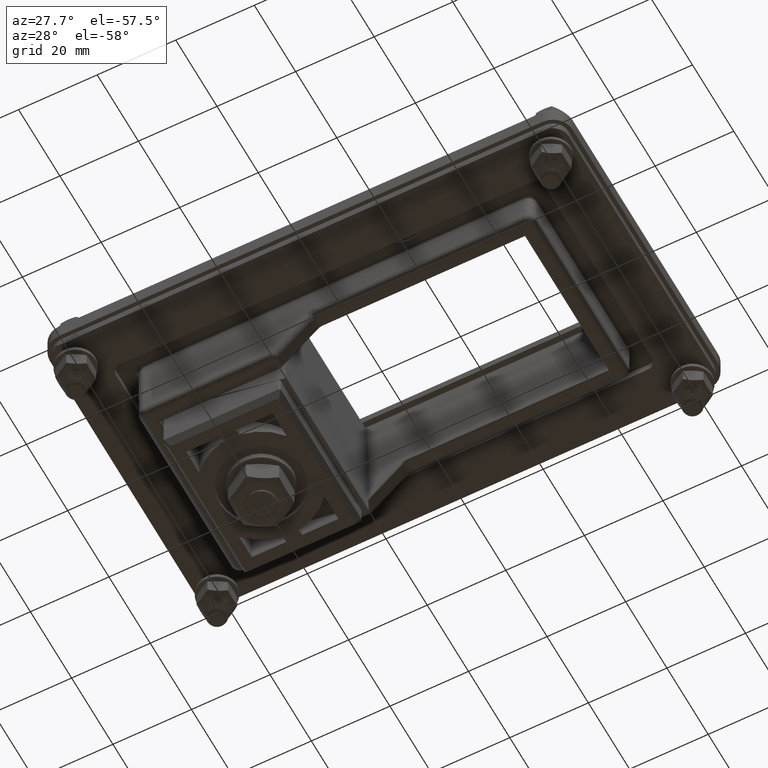
[diagram: clean part render]
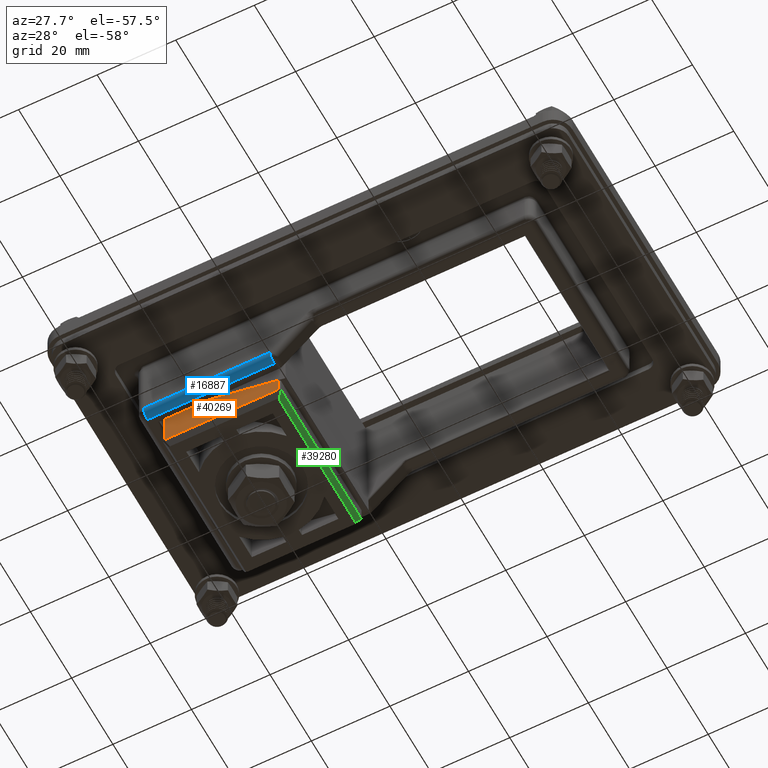
[diagram: same view with three faces highlighted in distinct colors, each labeled with its STEP entity id]
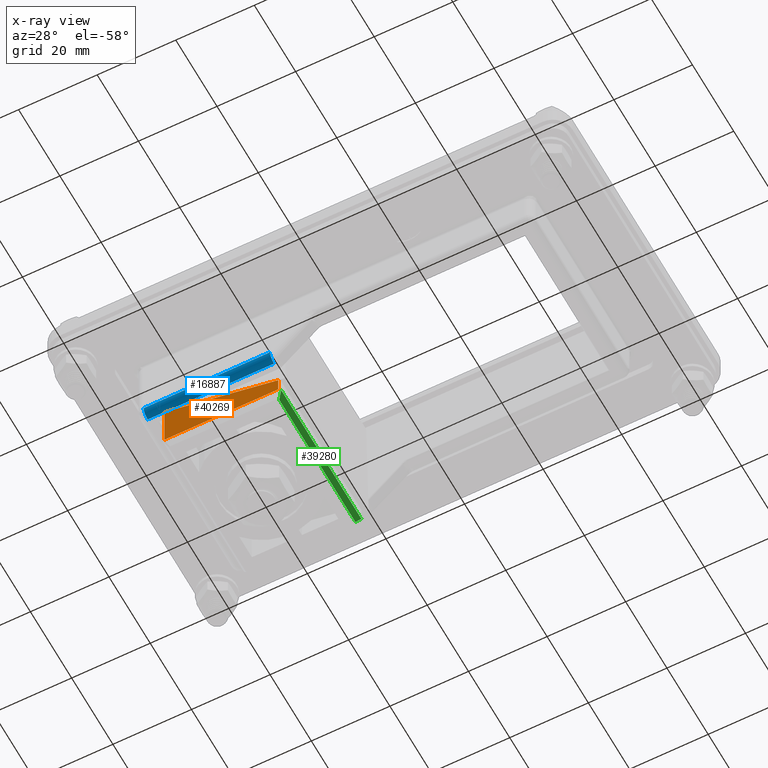
[diagram: x-ray of the same camera — body ghosted, the three highlighted faces saturated]
A machine part, auxiliary view with three faces highlighted in distinct colors.
The next image is the same camera in x-ray (body ghosted, the three faces saturated) — at least one of them is partly hidden behind the body in this view.
Their STEP definitions:

[orange] entity #40269 — the highlighted planar face has unit normal (-0, -1, 0).
#39154=CARTESIAN_POINT('',(570.45626329083211,423.0838394565817,11.75));
#39155=VERTEX_POINT('',#39154);
#39163=CARTESIAN_POINT('',(570.45626329083211,423.0838394565817,0.133974596215594));
#39164=VERTEX_POINT('',#39163);
#39165=CARTESIAN_POINT('',(570.45626329083211,423.0838394565817,11.75));
#39166=DIRECTION('',(0.0,0.0,-1.0));
#39167=VECTOR('',#39166,11.616025403784407);
#39168=LINE('',#39165,#39167);
#39169=EDGE_CURVE('',#39155,#39164,#39168,.T.);
#39506=CARTESIAN_POINT('',(541.45626329083245,423.0838394565817,7.904501176718119));
#39507=VERTEX_POINT('',#39506);
#39508=CARTESIAN_POINT('',(541.45626329083245,423.0838394565817,7.904501176718119));
#39509=DIRECTION('',(0.965925826289068,0.0,-0.258819045102521));
#39510=VECTOR('',#39509,30.023009231892061);
#39511=LINE('',#39508,#39510);
#39512=EDGE_CURVE('',#39507,#39164,#39511,.T.);
#39599=CARTESIAN_POINT('',(541.45626329083245,423.0838394565817,11.75));
#39600=VERTEX_POINT('',#39599);
#39601=CARTESIAN_POINT('',(541.45626329083245,423.0838394565817,7.904501176718119));
#39602=DIRECTION('',(0.0,0.0,1.0));
#39603=VECTOR('',#39602,3.845498823281881);
#39604=LINE('',#39601,#39603);
#39605=EDGE_CURVE('',#39507,#39600,#39604,.T.);
#39643=CARTESIAN_POINT('',(541.45626329083245,423.0838394565817,11.75));
#39644=DIRECTION('',(1.0,0.0,0.0));
#39645=VECTOR('',#39644,28.999999999999659);
#39646=LINE('',#39643,#39645);
#39647=EDGE_CURVE('',#39600,#39155,#39646,.T.);
#40258=CARTESIAN_POINT('',(570.95626329083245,423.0838394565817,0.0));
#40259=DIRECTION('',(0.0,-1.0,0.0));
#40260=DIRECTION('',(0.0,0.0,-1.0));
#40261=AXIS2_PLACEMENT_3D('',#40258,#40259,#40260);
#40262=PLANE('',#40261);
#40263=ORIENTED_EDGE('',*,*,#39169,.F.);
#40264=ORIENTED_EDGE('',*,*,#39647,.F.);
#40265=ORIENTED_EDGE('',*,*,#39605,.F.);
#40266=ORIENTED_EDGE('',*,*,#39512,.T.);
#40267=EDGE_LOOP('',(#40263,#40264,#40265,#40266));
#40268=FACE_OUTER_BOUND('',#40267,.T.);
#40269=ADVANCED_FACE('',(#40268),#40262,.T.);

[blue] entity #16887 — the highlighted cylindrical surface (edge-blend (fillet) strip) has radius 2 mm, axis along (1, 0, 0).
#1134=CARTESIAN_POINT('',(-26.328427124746206,-22.180108900902429,-10.0));
#1135=VERTEX_POINT('',#1134);
#16286=CARTESIAN_POINT('',(-58.5,-22.180108900902429,-10.0));
#16287=VERTEX_POINT('',#16286);
#16288=CARTESIAN_POINT('',(-58.5,-22.180108900902429,-10.0));
#16289=DIRECTION('',(1.0,0.0,0.0));
#16290=VECTOR('',#16289,32.171572875253794);
#16291=LINE('',#16288,#16290);
#16292=EDGE_CURVE('',#16287,#1135,#16291,.T.);
#16827=CARTESIAN_POINT('',(-26.328427124746206,-24.180032747030772,-8.017453070996744));
#16828=VERTEX_POINT('',#16827);
#16836=CARTESIAN_POINT('',(-26.328427124746206,-22.180108900902429,-8.0));
#16837=DIRECTION('',(1.0,0.0,0.0));
#16838=DIRECTION('',(0.0,-0.704014724455968,-0.710185375623285));
#16839=AXIS2_PLACEMENT_3D('',#16836,#16837,#16838);
#16840=CIRCLE('',#16839,2.0);
#16841=EDGE_CURVE('',#16828,#1135,#16840,.T.);
#16863=CARTESIAN_POINT('',(-1.531598513011145,-22.180108900902429,-8.0));
#16864=DIRECTION('',(1.0,0.0,0.0));
#16865=DIRECTION('',(0.0,-0.704014724455968,-0.710185375623286));
#16866=AXIS2_PLACEMENT_3D('',#16863,#16864,#16865);
#16867=CYLINDRICAL_SURFACE('',#16866,2.0);
#16868=CARTESIAN_POINT('',(-58.5,-24.180032747030772,-8.01745307099675));
#16869=VERTEX_POINT('',#16868);
#16870=CARTESIAN_POINT('',(-58.5,-22.180108900902429,-8.0));
#16871=DIRECTION('',(1.0,0.0,0.0));
#16872=DIRECTION('',(0.0,-0.999961923064171,-0.008726535498375));
#16873=AXIS2_PLACEMENT_3D('',#16870,#16871,#16872);
#16874=CIRCLE('',#16873,2.000000000000001);
#16875=EDGE_CURVE('',#16869,#16287,#16874,.T.);
#16876=ORIENTED_EDGE('',*,*,#16875,.T.);
#16877=ORIENTED_EDGE('',*,*,#16292,.T.);
#16878=ORIENTED_EDGE('',*,*,#16841,.F.);
#16879=CARTESIAN_POINT('',(-26.328427124746206,-24.180032747030772,-8.017453070996748));
#16880=DIRECTION('',(-1.0,0.0,0.0));
#16881=VECTOR('',#16880,32.171572875253794);
#16882=LINE('',#16879,#16881);
#16883=EDGE_CURVE('',#16828,#16869,#16882,.T.);
#16884=ORIENTED_EDGE('',*,*,#16883,.T.);
#16885=EDGE_LOOP('',(#16876,#16877,#16878,#16884));
#16886=FACE_OUTER_BOUND('',#16885,.T.);
#16887=ADVANCED_FACE('',(#16886),#16867,.T.);

[green] entity #39280 — the highlighted planar face has unit normal (0.8944, -0, -0.4472).
#39205=CARTESIAN_POINT('',(541.95626329083245,424.53105305208169,13.75));
#39206=VERTEX_POINT('',#39205);
#39214=CARTESIAN_POINT('',(540.9587952143296,423.53358497557906,11.75506384699489));
#39215=VERTEX_POINT('',#39214);
#39216=CARTESIAN_POINT('',(541.95626329083245,424.53105305208169,13.75));
#39217=DIRECTION('',(-0.408248290463869,-0.408248290463869,-0.81649658092772));
#39218=VECTOR('',#39217,2.443287822146817);
#39219=LINE('',#39216,#39218);
#39220=EDGE_CURVE('',#39206,#39215,#39219,.T.);
#39232=CARTESIAN_POINT('',(541.45626329083245,442.98383945658173,12.750000000000002));
#39233=DIRECTION('',(-0.894427190999916,0.0,0.447213595499958));
#39234=DIRECTION('',(0.447213595499958,0.0,0.894427190999916));
#39235=AXIS2_PLACEMENT_3D('',#39232,#39233,#39234);
#39236=PLANE('',#39235);
#39237=ORIENTED_EDGE('',*,*,#39220,.F.);
#39238=CARTESIAN_POINT('',(541.95626329083245,461.43662586108184,13.75));
#39239=VERTEX_POINT('',#39238);
#39240=CARTESIAN_POINT('',(541.95626329083245,424.53105305208169,13.75));
#39241=DIRECTION('',(0.0,1.0,0.0));
#39242=VECTOR('',#39241,36.905572809000148);
#39243=LINE('',#39240,#39242);
#39244=EDGE_CURVE('',#39206,#39239,#39243,.T.);
#39245=ORIENTED_EDGE('',*,*,#39244,.T.);
#39246=CARTESIAN_POINT('',(540.95879521432971,462.43409393758463,11.755063846994895));
#39247=VERTEX_POINT('',#39246);
#39248=CARTESIAN_POINT('',(540.95879521432971,462.43409393758463,11.755063846994895));
#39249=DIRECTION('',(0.408248290463868,-0.408248290463868,0.816496580927721));
#39250=VECTOR('',#39249,2.443287822146824);
#39251=LINE('',#39248,#39250);
#39252=EDGE_CURVE('',#39247,#39239,#39251,.T.);
#39253=ORIENTED_EDGE('',*,*,#39252,.F.);
#39254=CARTESIAN_POINT('',(540.95626329083245,462.38383945658177,11.75));
#39255=VERTEX_POINT('',#39254);
#39256=CARTESIAN_POINT('',(541.45626329083245,462.38383945658177,12.750000000000002));
#39257=DIRECTION('',(0.894427190999916,0.0,-0.447213595499958));
#39258=DIRECTION('',(-0.447213595499958,-8.192363E-016,-0.894427190999916));
#39259=AXIS2_PLACEMENT_3D('',#39256,#39257,#39258);
#39260=ELLIPSE('',#39259,1.118033988749895,0.5);
#39261=EDGE_CURVE('',#39255,#39247,#39260,.T.);
#39262=ORIENTED_EDGE('',*,*,#39261,.F.);
#39263=CARTESIAN_POINT('',(540.95626329083245,423.58383945658176,11.75));
#39264=VERTEX_POINT('',#39263);
#39265=CARTESIAN_POINT('',(540.95626329083245,462.38383945658177,11.75));
#39266=DIRECTION('',(0.0,-1.0,0.0));
#39267=VECTOR('',#39266,38.800000000000011);
#39268=LINE('',#39265,#39267);
#39269=EDGE_CURVE('',#39255,#39264,#39268,.T.);
#39270=ORIENTED_EDGE('',*,*,#39269,.T.);
#39271=CARTESIAN_POINT('',(541.45626329083245,423.58383945658176,12.750000000000002));
#39272=DIRECTION('',(0.894427190999916,0.0,-0.447213595499958));
#39273=DIRECTION('',(-0.447213595499958,8.192363E-016,-0.894427190999916));
#39274=AXIS2_PLACEMENT_3D('',#39271,#39272,#39273);
#39275=ELLIPSE('',#39274,1.118033988749895,0.5);
#39276=EDGE_CURVE('',#39215,#39264,#39275,.T.);
#39277=ORIENTED_EDGE('',*,*,#39276,.F.);
#39278=EDGE_LOOP('',(#39237,#39245,#39253,#39262,#39270,#39277));
#39279=FACE_OUTER_BOUND('',#39278,.T.);
#39280=ADVANCED_FACE('',(#39279),#39236,.T.);